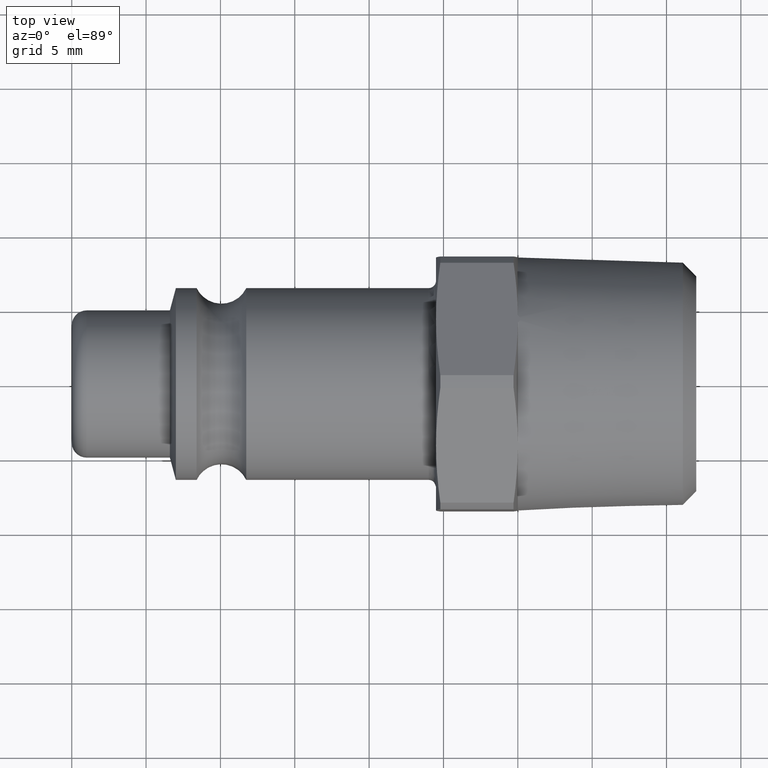
[diagram: clean part render]
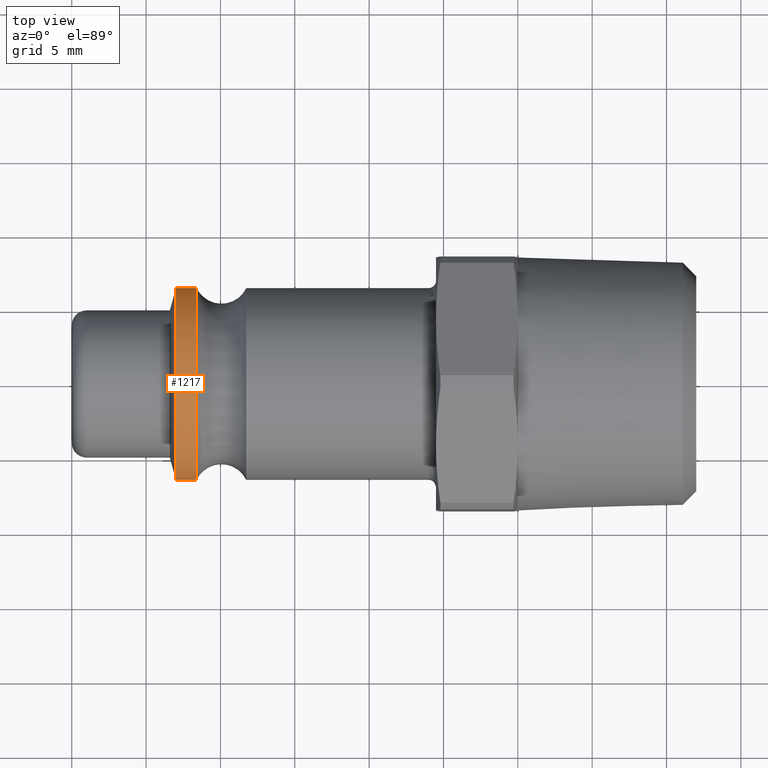
[diagram: same view with one face highlighted and labeled with its STEP entity id]
A machine part, top view. The second image highlights one B-rep face of the part: STEP entity #1217.
In plain terms, the highlighted cylindrical surface (bore or boss wall) has radius 6.45 mm, axis along (1, 0, 0).
Its self-contained STEP definition (entity closure, byte-faithful):
#1183=CARTESIAN_POINT('',(7.001923788646685,6.45,0.0));
#1184=VERTEX_POINT('',#1183);
#1185=CARTESIAN_POINT('',(7.001923788646685,0.0,0.0));
#1186=DIRECTION('',(1.0,0.0,0.0));
#1187=DIRECTION('',(0.0,1.0,0.0));
#1188=AXIS2_PLACEMENT_3D('',#1185,#1186,#1187);
#1189=CIRCLE('',#1188,6.45);
#1190=EDGE_CURVE('',#1184,#1184,#1189,.T.);
#1198=CARTESIAN_POINT('',(7.700961894323342,0.0,0.0));
#1199=DIRECTION('',(1.0,0.0,0.0));
#1200=DIRECTION('',(0.0,1.0,0.0));
#1201=AXIS2_PLACEMENT_3D('',#1198,#1199,#1200);
#1202=CYLINDRICAL_SURFACE('',#1201,6.45);
#1203=CARTESIAN_POINT('',(8.4,6.45,0.0));
#1204=VERTEX_POINT('',#1203);
#1205=CARTESIAN_POINT('',(8.4,0.0,0.0));
#1206=DIRECTION('',(1.0,0.0,0.0));
#1207=DIRECTION('',(0.0,1.0,0.0));
#1208=AXIS2_PLACEMENT_3D('',#1205,#1206,#1207);
#1209=CIRCLE('',#1208,6.45);
#1210=EDGE_CURVE('',#1204,#1204,#1209,.T.);
#1211=ORIENTED_EDGE('',*,*,#1210,.F.);
#1212=EDGE_LOOP('',(#1211));
#1213=FACE_OUTER_BOUND('',#1212,.T.);
#1214=ORIENTED_EDGE('',*,*,#1190,.T.);
#1215=EDGE_LOOP('',(#1214));
#1216=FACE_BOUND('',#1215,.T.);
#1217=ADVANCED_FACE('',(#1213,#1216),#1202,.T.);